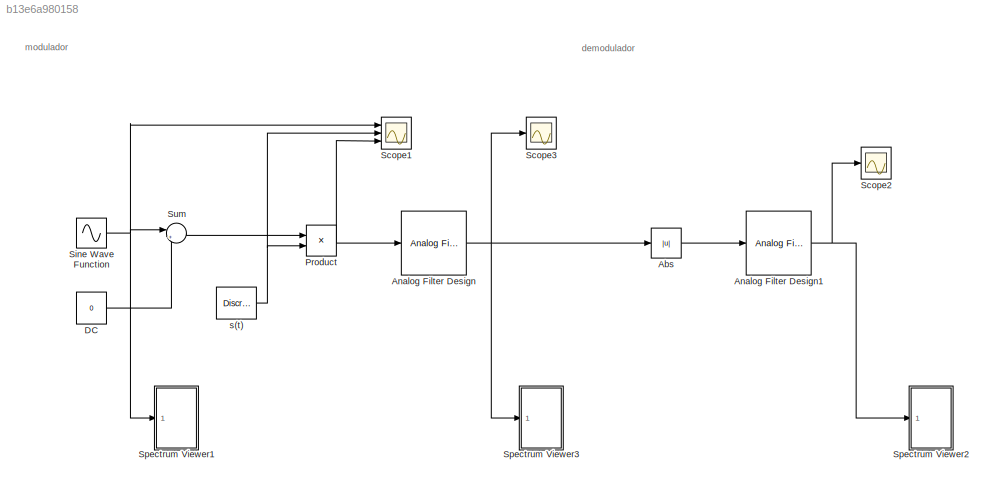
MODEL slx_b13e6a980158
KIND model
CONFIG AbsTol = auto
CONFIG EnableMultiTasking = off
CONFIG FixedStep = 1/2.2e7
CONFIG MaxStep = auto
CONFIG MinStep = auto
CONFIG RelTol = 1e-3
CONFIG SampleTimeConstraint = Unconstrained
CONFIG Solver = FixedStepAuto
CONFIG SolverName = FixedStepAuto
CONFIG StartTime = 0.0
CONFIG StopTime = 1e-1
BLOCK [Abs] Abs
  SaturateOnIntegerOverflow = off
BLOCK [Reference] Analog Filter Design  REF=dsparch4/Analog
Filter Design
  Ports = [1, 1]
  SourceBlock = dsparch4/Analog\nFilter Design
  SourceProductBaseCode = DS
  SourceProductName = DSP System Toolbox
  SourceType = Analog Filter Design
BLOCK [Reference] Analog Filter Design1  REF=dsparch4/Analog
Filter Design
  Ports = [1, 1]
  SourceBlock = dsparch4/Analog\nFilter Design
  SourceProductBaseCode = DS
  SourceProductName = DSP System Toolbox
  SourceType = Analog Filter Design
BLOCK [Constant] DC
  Value = 0
BLOCK [Product] Product
  InputSameDT = off
  OutDataTypeStr = Inherit: Inherit via internal rule
  Ports = [2, 1]
  RndMeth = Floor
  SaturateOnIntegerOverflow = off
BLOCK [Scope] Scope1
  Floating = off
  NumInputPorts = 3
  Ports = [3]
  ScopeSpecificationString = Simulink.scopes.TimeScopeBlockCfg('CurrentConfiguration', extmgr.ConfigurationSet(extmgr.Configuration('Core','General UI',true),extmgr.Configuration('Core','Source UI',true),extmgr.Configuration('Sources','WiredSimulink',true,'DataLoggingVariableName','ScopeData1'),extmgr.Configuration('Visuals','Time Domain',true,'SerializedDisplays',{struct('MinYLimReal','-0.6875','MaxYLimReal','1.1875','YLabel...<+1808ch>
BLOCK [Scope] Scope2
  Floating = off
  NumInputPorts = 1
  Ports = [1]
  ScopeSpecificationString = Simulink.scopes.TimeScopeBlockCfg('CurrentConfiguration', extmgr.ConfigurationSet(extmgr.Configuration('Core','General UI',true),extmgr.Configuration('Core','Source UI',true),extmgr.Configuration('Sources','WiredSimulink',true,'DataLoggingVariableName','ScopeData1'),extmgr.Configuration('Visuals','Time Domain',true,'SerializedDisplays',{struct('MinYLimReal','-0.01879','MaxYLimReal','0.1691','YLabe...<+1488ch>
BLOCK [Scope] Scope3
  Floating = off
  NumInputPorts = 1
  Ports = [1]
  ScopeSpecificationString = Simulink.scopes.TimeScopeBlockCfg('CurrentConfiguration', extmgr.ConfigurationSet(extmgr.Configuration('Core','General UI',true),extmgr.Configuration('Core','Source UI',true),extmgr.Configuration('Sources','WiredSimulink',true,'DataLoggingVariableName','ScopeData1'),extmgr.Configuration('Visuals','Time Domain',true,'SerializedDisplays',{struct('MinYLimReal','-0.28872','MaxYLimReal','0.28875','YLab...<+1792ch>
BLOCK [Sin] Sine Wave Function
  Amplitude = 0.5
  Frequency = 2*pi*10e3
  Ports = [0, 1]
  SampleTime = 0
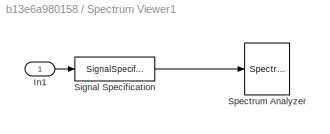
BLOCK [SubSystem] Spectrum Viewer1
  Commented = on
  Ports = [1]
  RequestExecContextInheritance = off
BLOCK [Inport] Spectrum Viewer1/In1
  IconDisplay = Port number
BLOCK [SignalSpecification] Spectrum Viewer1/Signal Specification
  SampleTime = 1/2.2e6
BLOCK [SpectrumAnalyzer] Spectrum Viewer1/Spectrum Analyzer
  Ports = [1]
  ScopeSpecificationString = spbscopes.SpectrumAnalyzerBlockCfg('CurrentConfiguration', extmgr.ConfigurationSet(extmgr.Configuration('Core','General UI',true),extmgr.Configuration('Core','Source UI',true),extmgr.Configuration('Sources','WiredSimulink',true),extmgr.Configuration('Sources','SimulinkEvent',false),extmgr.Configuration('Sources','Simulink',false),extmgr.Configuration('Sources','SPTool',false),extmgr.Configuration(...<+3714ch>
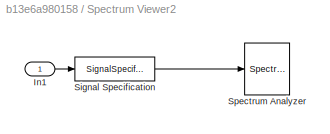
BLOCK [SubSystem] Spectrum Viewer2
  Ports = [1]
  RequestExecContextInheritance = off
BLOCK [Inport] Spectrum Viewer2/In1
  IconDisplay = Port number
BLOCK [SignalSpecification] Spectrum Viewer2/Signal Specification
  SampleTime = 0.5e-5
BLOCK [SpectrumAnalyzer] Spectrum Viewer2/Spectrum Analyzer
  Ports = [1]
  ScopeSpecificationString = spbscopes.SpectrumAnalyzerBlockCfg('CurrentConfiguration', extmgr.ConfigurationSet(extmgr.Configuration('Core','General UI',true),extmgr.Configuration('Core','Source UI',true),extmgr.Configuration('Sources','WiredSimulink',true),extmgr.Configuration('Sources','SimulinkEvent',false),extmgr.Configuration('Sources','Simulink',false),extmgr.Configuration('Sources','SPTool',false),extmgr.Configuration(...<+3673ch>
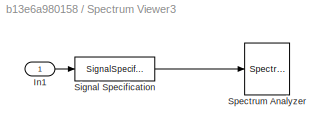
BLOCK [SubSystem] Spectrum Viewer3
  Commented = on
  Ports = [1]
  RequestExecContextInheritance = off
BLOCK [Inport] Spectrum Viewer3/In1
  IconDisplay = Port number
BLOCK [SignalSpecification] Spectrum Viewer3/Signal Specification
  SampleTime = 1/2.2e6
BLOCK [SpectrumAnalyzer] Spectrum Viewer3/Spectrum Analyzer
  Ports = [1]
  ScopeSpecificationString = spbscopes.SpectrumAnalyzerBlockCfg('CurrentConfiguration', extmgr.ConfigurationSet(extmgr.Configuration('Core','General UI',true),extmgr.Configuration('Core','Source UI',true),extmgr.Configuration('Sources','WiredSimulink',true),extmgr.Configuration('Sources','SimulinkEvent',false),extmgr.Configuration('Sources','Simulink',false),extmgr.Configuration('Sources','SPTool',false),extmgr.Configuration(...<+3773ch>
BLOCK [Sum] Sum
  IconShape = round
  InputSameDT = off
  Inputs = |++
  OutDataTypeStr = Inherit: Inherit via internal rule
  Ports = [2, 1]
  SaturateOnIntegerOverflow = off
BLOCK [DiscretePulseGenerator] s(t) 
  Period = 1e-6
  Ports = [0, 1]
  PulseType = Time based
  PulseWidth = 50
ANNOTATION (root): demodulador
ANNOTATION (root): modulador
LINE Abs:1 -> Analog Filter Design1:1
NET Analog Filter Design1:1 -> Scope2:1, Spectrum Viewer2:1
NET Analog Filter Design:1 -> Abs:1, Scope3:1, Spectrum Viewer3:1
LINE DC:1 -> Sum:2
NET Product:1 -> Analog Filter Design:1, Scope1:3
NET Sine Wave Function:1 -> Scope1:1, Spectrum Viewer1:1, Sum:1
LINE Spectrum Viewer1/In1:1 -> Spectrum Viewer1/Signal Specification:1
LINE Spectrum Viewer1/Signal Specification:1 -> Spectrum Viewer1/Spectrum Analyzer:1
LINE Spectrum Viewer2/In1:1 -> Spectrum Viewer2/Signal Specification:1
LINE Spectrum Viewer2/Signal Specification:1 -> Spectrum Viewer2/Spectrum Analyzer:1
LINE Spectrum Viewer3/In1:1 -> Spectrum Viewer3/Signal Specification:1
LINE Spectrum Viewer3/Signal Specification:1 -> Spectrum Viewer3/Spectrum Analyzer:1
LINE Sum:1 -> Product:1
NET s(t) :1 -> Product:2, Scope1:2
note: NET lines group one-source signal fan-out (src -> all destinations, sorted); 1:1 wires keep LINE
